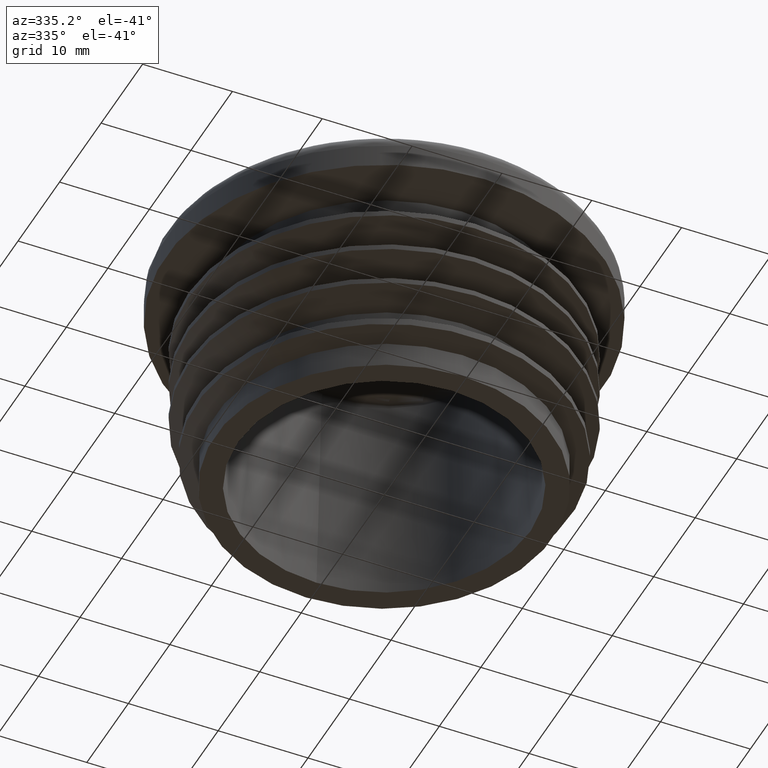
[diagram: clean part render]
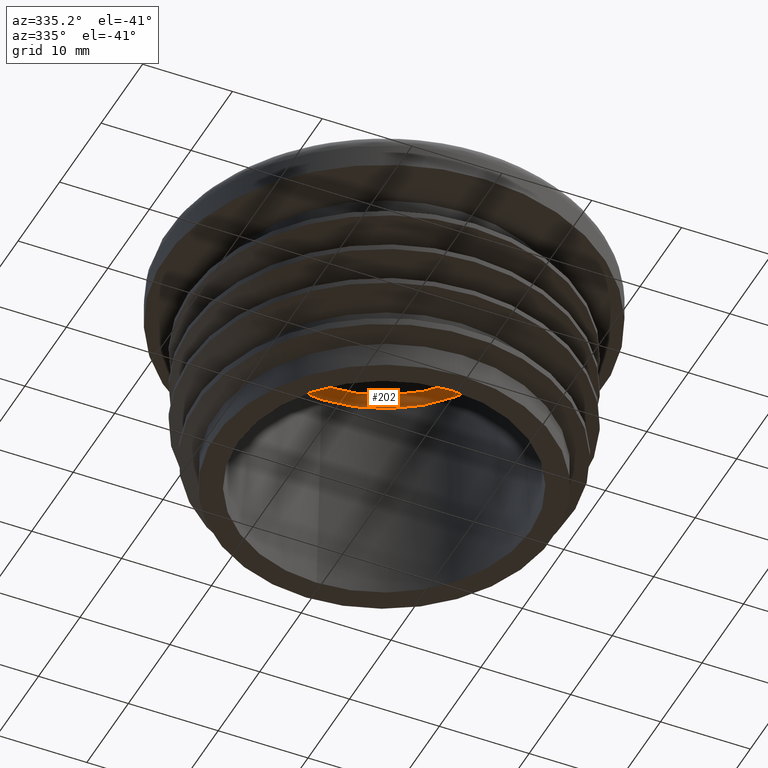
[diagram: same view with one face highlighted and labeled with its STEP entity id]
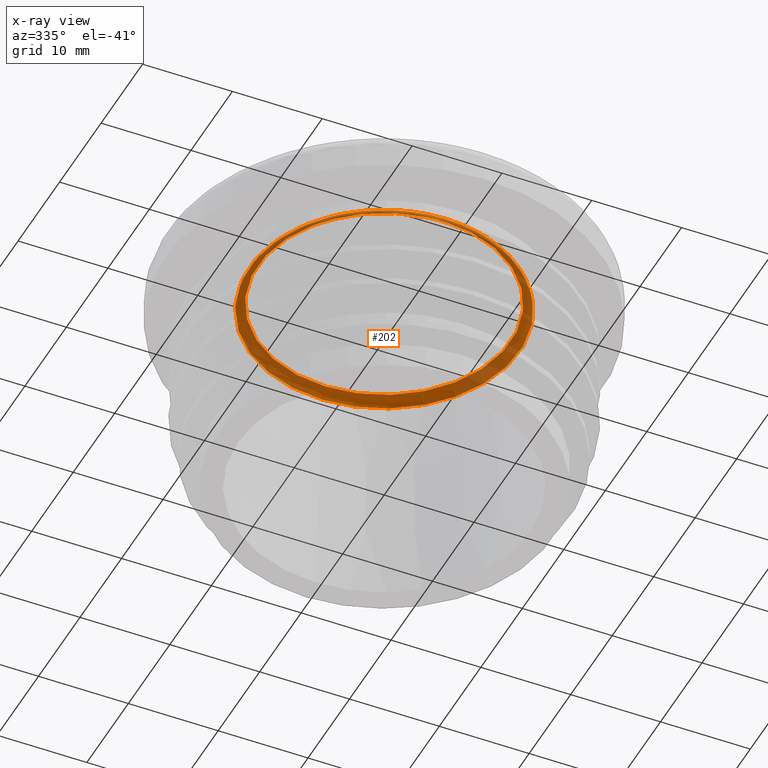
[diagram: x-ray of the same camera — body ghosted, the highlighted face saturated]
A machine part, auxiliary view. The second image highlights one B-rep face of the part: STEP entity #202.
The next image is the same camera in x-ray: the body ghosted, the highlighted face saturated — about 72% of this face is hidden behind the body in this view.
In plain terms, the highlighted toroidal blend (fillet) surface has major radius 14.067 mm and minor (blend) radius 1 mm.
Its self-contained STEP definition (entity closure, byte-faithful):
#202 = ADVANCED_FACE( '', ( #503, #504 ), #505, .F. );
#503 = FACE_OUTER_BOUND( '', #1144, .T. );
#504 = FACE_OUTER_BOUND( '', #1145, .T. );
#505 = TOROIDAL_SURFACE( '', #1146, 14.0670448408506, 1.00000000000000 );
#1144 = EDGE_LOOP( '', ( #2208 ) );
#1145 = EDGE_LOOP( '', ( #2209 ) );
#1146 = AXIS2_PLACEMENT_3D( '', #2210, #2211, #2212 );
#2208 = ORIENTED_EDGE( '', *, *, #2586, .F. );
#2209 = ORIENTED_EDGE( '', *, *, #2585, .T. );
#2210 = CARTESIAN_POINT( '', ( 0.000000000000000, 9.18454765366793E-017, 23.5000000000000 ) );
#2211 = DIRECTION( '', ( 0.000000000000000, -6.12303176911189E-017, -1.00000000000000 ) );
#2212 = DIRECTION( '', ( 0.000000000000000, 1.00000000000000, -6.12303176911189E-017 ) );
#2585 = EDGE_CURVE( '', #3126, #3126, #3127, .T. );
#2586 = EDGE_CURVE( '', #3128, #3128, #3129, .T. );
#3126 = VERTEX_POINT( '', #4962 );
#3127 = CIRCLE( '', #4963, 15.0656743756052 );
#3128 = VERTEX_POINT( '', #4964 );
#3129 = CIRCLE( '', #4965, 14.0670448408506 );
#4962 = CARTESIAN_POINT( '', ( 0.000000000000000, 15.0656743756052, 23.5523359562429 ) );
#4963 = AXIS2_PLACEMENT_3D( '', #5139, #5140, #5141 );
#4964 = CARTESIAN_POINT( '', ( 0.000000000000000, 14.0670448408506, 24.5000000000000 ) );
#4965 = AXIS2_PLACEMENT_3D( '', #5142, #5143, #5144 );
#5139 = CARTESIAN_POINT( '', ( 0.000000000000000, 9.50500237641014E-017, 23.5523359562429 ) );
#5140 = DIRECTION( '', ( 0.000000000000000, -6.12303176911189E-017, -1.00000000000000 ) );
#5141 = DIRECTION( '', ( 0.000000000000000, 1.00000000000000, -6.12303176911189E-017 ) );
#5142 = CARTESIAN_POINT( '', ( 0.000000000000000, 1.53075794227798E-016, 24.5000000000000 ) );
#5143 = DIRECTION( '', ( 0.000000000000000, -6.12303176911189E-017, -1.00000000000000 ) );
#5144 = DIRECTION( '', ( 0.000000000000000, 1.00000000000000, -6.12303176911189E-017 ) );